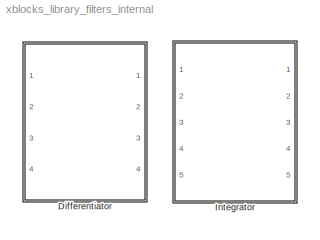
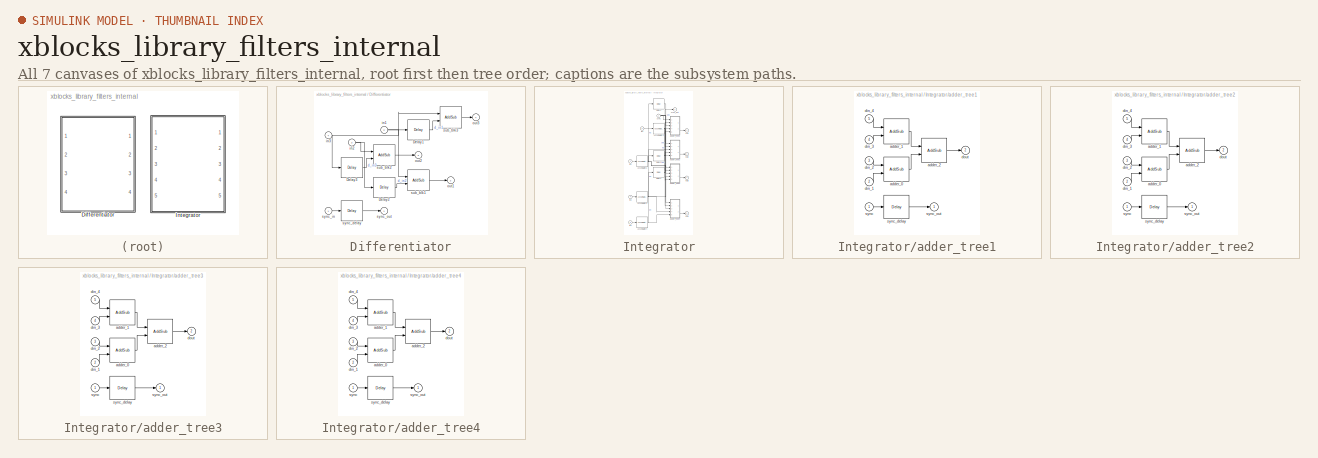
[diagram: thumbnail index - all 7 canvases of the model, root first then tree order]
MODEL xblocks_library_filters_internal
KIND library
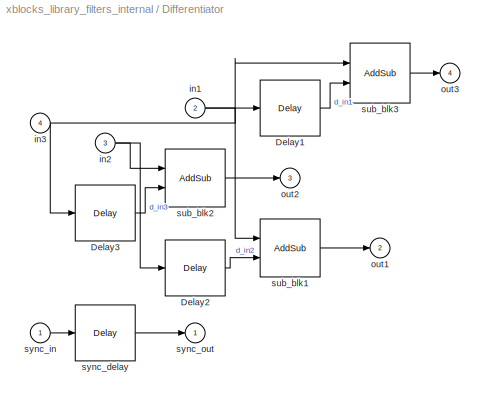
BLOCK [SubSystem] Differentiator
  AttributesFormatString = Differentiation length = 8\nBitwidth = 10 bin_pt=8
  FunctionWithSeparateData = off
  MaskCallbackString = ||||
  MaskDescription = Parallely Differentiate for a given length.
  MaskEnableString = on,on,on,on,on
  MaskHideContents = off
  MaskIconFrame = on
  MaskIconOpaque = on
  MaskIconRotate = none
  MaskIconUnits = autoscale
  MaskInitialization = config.source=str2func('parallel_differentiator_init_xblock');\nconfig.depend=get_dependlist('parallel_differentiator');\nconfig.toplevel=gcb;\nset_param(gcb,'LinkStatus','inactive');\nxBlock(config, {config.toplevel,...\n    'n_inputs', n_inputs, ...\n    'n_bits', n_bits, ...\n    'bin_pt', bin_pt, ...\n    'latency', latency, ...\n    'diff_length', diff_length});
  MaskPortRotate = default
  MaskPromptString = number of inputs|bitwidth of input/output|binary point|Add/Sub Latency|Differentiation Length
  MaskStyleString = edit,edit,edit,edit,edit
  MaskToolTipString = on,on,on,on,on
  MaskTunableValueString = on,on,on,on,on
  MaskType = Parallel Differentiator (xBlock)
  MaskValueString = 3|10|8|1|8
  MaskVariables = n_inputs=@1;n_bits=@2;bin_pt=@3;latency=@4;diff_length=@5;
  MaskVisibilityString = on,on,on,on,on
  MinAlgLoopOccurrences = off
  Opaque = off
  Ports = [4, 4]
  PropExecContextOutsideSubsystem = off
  RTWSystemCode = Auto
  RequestExecContextInheritance = off
  SID = 398
  UserData = DataTag0
  UserDataPersistent = on
BLOCK [Reference] Differentiator/Delay1  REF=xbsIndex_r4/Delay
  Ports = [1, 1]
  SID = 1208
  SourceBlock = xbsIndex_r4/Delay
  SourceType = Xilinx Delay Block
  block_type = delay
  block_version = 11.4
  dbl_ovrd = off
  en = off
  has_advanced_control = 0
  infoedit = Hardware notes: A delay line is a chain, each link of which is an SRL16 followed by a flip-flop.
  latency = 2
  reg_retiming = off
  sg_icon_stat = 60,56,1,1,white,blue,0,85ce9542,right,
  sg_mask_display = fprintf('','COMMENT: begin icon graphics');\npatch([0 1 1 0 ],[0 0 1 1 ],[0.77 0.82 0.91]);\npatch([0.25 0.1 0.316667 0.1 0.25 0.5 0.566667 0.633333 0.9 0.683333 0.483333 0.333333 0.533333 0.333333 0.483333 0.683333 0.9 0.633333 0.566667 0.5 0.25 ],[0.107143 0.267857 0.5 0.732143 0.892857 0.892857 0.821429 0.892857 0.892857 0.660714 0.875 0.714286 0.5 0.285714 0.125 0.339286 0.107143 0.107143 0.17...<+249ch>  <repeated x11 — deduplicated; at blocks: Delay1, Delay2, Delay3, sync_delay, Delay4>
  sggui_pos = -1,-1,-1,-1
  xl_area = [0,0,0,0,0,0,0]
  xl_use_area = off
BLOCK [Reference] Differentiator/Delay2  REF=xbsIndex_r4/Delay
  Ports = [1, 1]
  SID = 1206
  SourceBlock = xbsIndex_r4/Delay
  SourceType = Xilinx Delay Block
  block_type = delay
  block_version = 11.4
  dbl_ovrd = off
  en = off
  has_advanced_control = 0
  infoedit = Hardware notes: A delay line is a chain, each link of which is an SRL16 followed by a flip-flop.
  latency = 3
  reg_retiming = off
  sg_icon_stat = 60,56,1,1,white,blue,0,83e6bb61,right,
  sggui_pos = -1,-1,-1,-1
  xl_area = [0,0,0,0,0,0,0]
  xl_use_area = off
BLOCK [Reference] Differentiator/Delay3  REF=xbsIndex_r4/Delay
  Ports = [1, 1]
  SID = 1207
  SourceBlock = xbsIndex_r4/Delay
  SourceType = Xilinx Delay Block
  block_type = delay
  block_version = 11.4
  dbl_ovrd = off
  en = off
  has_advanced_control = 0
  infoedit = Hardware notes: A delay line is a chain, each link of which is an SRL16 followed by a flip-flop.
  latency = 3
  reg_retiming = off
  sg_icon_stat = 60,56,1,1,white,blue,0,83e6bb61,right,
  sggui_pos = -1,-1,-1,-1
  xl_area = [0,0,0,0,0,0,0]
  xl_use_area = off
BLOCK [Inport] Differentiator/in1
  IconDisplay = Port number
  Port = 2
  SID = 400
BLOCK [Inport] Differentiator/in2
  IconDisplay = Port number
  Port = 3
  SID = 401
BLOCK [Inport] Differentiator/in3
  IconDisplay = Port number
  Port = 4
  SID = 402
BLOCK [Outport] Differentiator/out1
  IconDisplay = Port number
  Port = 2
  SID = 411
BLOCK [Outport] Differentiator/out2
  IconDisplay = Port number
  Port = 3
  SID = 412
BLOCK [Outport] Differentiator/out3
  IconDisplay = Port number
  Port = 4
  SID = 413
BLOCK [Reference] Differentiator/sub_blk1  REF=xbsIndex_r4/AddSub
  Ports = [2, 1]
  SID = 1209
  SourceBlock = xbsIndex_r4/AddSub
  SourceType = Xilinx Adder/Subtracter Block
  arith_type = Signed  (2's comp)
  bin_pt = 8
  block_type = addsub
  block_version = 11.4
  dbl_ovrd = off
  en = off
  has_advanced_control = 0
  hw_selection = Fabric
  latency = 1
  mode = Subtraction
  n_bits = 10
  overflow = Wrap
  pipelined = off
  precision = User Defined
  quantization = Truncate
  sg_icon_stat = 60,58,2,1,white,blue,0,f9b6405b,right,
  sg_mask_display = fprintf('','COMMENT: begin icon graphics');\npatch([0 1 1 0 ],[0 0 1 1 ],[0.77 0.82 0.91]);\npatch([0.25 0.0833333 0.316667 0.0833333 0.25 0.5 0.566667 0.633333 0.9 0.683333 0.483333 0.333333 0.566667 0.333333 0.483333 0.683333 0.9 0.633333 0.566667 0.5 0.25 ],[0.103448 0.275862 0.517241 0.758621 0.931034 0.931034 0.862069 0.931034 0.931034 0.706897 0.913793 0.758621 0.517241 0.275862 0.12069 0.32...<+455ch>  <repeated x10 — deduplicated; at blocks: sub_blk1, sub_blk2, adder_0, adder_2>
  sggui_pos = -1,-1,-1,-1
  use_behavioral_HDL = on
  use_carryin = off
  use_carryout = off
  xl_area = [0,0,0,0,0,0,0]
  xl_use_area = off
BLOCK [Reference] Differentiator/sub_blk2  REF=xbsIndex_r4/AddSub
  Ports = [2, 1]
  SID = 1210
  SourceBlock = xbsIndex_r4/AddSub
  SourceType = Xilinx Adder/Subtracter Block
  arith_type = Signed  (2's comp)
  bin_pt = 8
  block_type = addsub
  block_version = 11.4
  dbl_ovrd = off
  en = off
  has_advanced_control = 0
  hw_selection = Fabric
  latency = 1
  mode = Subtraction
  n_bits = 10
  overflow = Wrap
  pipelined = off
  precision = User Defined
  quantization = Truncate
  sg_icon_stat = 60,58,2,1,white,blue,0,f9b6405b,right,
  sggui_pos = -1,-1,-1,-1
  use_behavioral_HDL = on
  use_carryin = off
  use_carryout = off
  xl_area = [0,0,0,0,0,0,0]
  xl_use_area = off
BLOCK [Reference] Differentiator/sub_blk3  REF=xbsIndex_r4/AddSub
  Ports = [2, 1]
  SID = 1211
  SourceBlock = xbsIndex_r4/AddSub
  SourceType = Xilinx Adder/Subtracter Block
  arith_type = Signed  (2's comp)
  bin_pt = 8
  block_type = addsub
  block_version = 11.4
  dbl_ovrd = off
  en = off
  has_advanced_control = 0
  hw_selection = Fabric
  latency = 1
  mode = Subtraction
  n_bits = 10
  overflow = Wrap
  pipelined = off
  precision = User Defined
  quantization = Truncate
  sg_icon_stat = 60,60,2,1,white,blue,0,f9b6405b,right,
  sg_mask_display = fprintf('','COMMENT: begin icon graphics');\npatch([0 1 1 0 ],[0 0 1 1 ],[0.77 0.82 0.91]);\npatch([0.233333 0.0666667 0.3 0.0666667 0.233333 0.5 0.566667 0.633333 0.916667 0.7 0.483333 0.333333 0.583333 0.333333 0.483333 0.7 0.916667 0.633333 0.566667 0.5 0.233333 ],[0.1 0.266667 0.5 0.733333 0.9 0.9 0.833333 0.9 0.9 0.683333 0.9 0.75 0.5 0.25 0.1 0.316667 0.1 0.1 0.166667 0.1 0.1 ],[0.98 0.96 0....<+390ch>  <repeated x5 — deduplicated; at blocks: sub_blk3, adder_1>
  sggui_pos = -1,-1,-1,-1
  use_behavioral_HDL = on
  use_carryin = off
  use_carryout = off
  xl_area = [0,0,0,0,0,0,0]
  xl_use_area = off
BLOCK [Reference] Differentiator/sync_delay  REF=xbsIndex_r4/Delay
  Ports = [1, 1]
  SID = 1212
  SourceBlock = xbsIndex_r4/Delay
  SourceType = Xilinx Delay Block
  block_type = delay
  block_version = 11.4
  dbl_ovrd = off
  en = off
  has_advanced_control = 0
  infoedit = Hardware notes: A delay line is a chain, each link of which is an SRL16 followed by a flip-flop.
  latency = 1
  reg_retiming = off
  sg_icon_stat = 60,56,1,1,white,blue,0,07b98262,right,
  sggui_pos = -1,-1,-1,-1
  xl_area = [0,0,0,0,0,0,0]
  xl_use_area = off
BLOCK [Inport] Differentiator/sync_in
  IconDisplay = Port number
  SID = 399
BLOCK [Outport] Differentiator/sync_out
  IconDisplay = Port number
  SID = 410
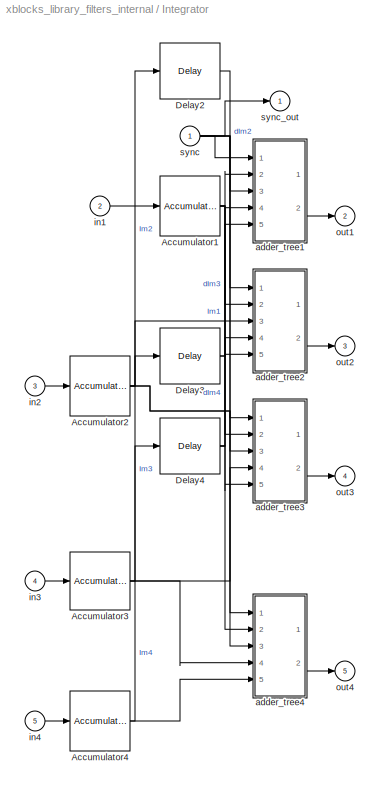
BLOCK [SubSystem] Integrator
  AttributesFormatString = Add Latency = 1\nBitwidth = 8 bin_pt = 0\nSaturate
  FunctionWithSeparateData = off
  MaskCallbackString = ||||
  MaskDescription = Parallely Integrate.
  MaskEnableString = on,on,on,on,on
  MaskHideContents = off
  MaskIconFrame = on
  MaskIconOpaque = on
  MaskIconRotate = none
  MaskIconUnits = autoscale
  MaskInitialization = config.source=str2func('parallel_integrator_init_xblock');\nconfig.depend=get_dependlist('parallel_integrator');\nconfig.toplevel=gcb;\nset_param(gcb,'LinkStatus','inactive');\nxBlock(config, {config.toplevel,...\n    'n_inputs', n_inputs, ...\n    'n_bits', n_bits, ...\n    'bin_pt', bin_pt, ...\n    'add_latency', add_latency, ...\n    'overflow', overflow});
  MaskPortRotate = default
  MaskPromptString = number of inputs|bitwidth of output|binary point|Overflow|Add Latency
  MaskStyleString = edit,edit,edit,popup(Wrap|Saturate|Flag as error),edit
  MaskToolTipString = on,on,on,on,on
  MaskTunableValueString = on,on,on,on,on
  MaskType = Parallel Integrator (xBlock)
  MaskValueString = 4|8|0|Saturate|1
  MaskVariables = n_inputs=@1;n_bits=@2;bin_pt=@3;overflow=&4;add_latency=@5;
  MaskVisibilityString = on,on,on,on,on
  MinAlgLoopOccurrences = off
  Opaque = off
  Ports = [5, 5]
  PropExecContextOutsideSubsystem = off
  RTWSystemCode = Auto
  RequestExecContextInheritance = off
  SID = 422
  UserData = DataTag1
  UserDataPersistent = on
BLOCK [Reference] Integrator/Accumulator1  REF=xbsIndex_r4/Accumulator
  Ports = [1, 1]
  SID = 1136
  SourceBlock = xbsIndex_r4/Accumulator
  SourceType = Xilinx Accumulator Block
  block_type = accum
  block_version = 11.4
  dbl_ovrd = off
  en = off
  has_advanced_control = 0
  hasbypass = off
  implementation = Fabric
  infoedit = Adder or subtracter-based accumulator.   Output type and binary point position match the input.<br><br>Hardware notes: When \"Reinitialize with input 'b' on reset\" is selected, the accumulator is forced to run at the system rate even if the input 'b' is running at a slower rate.  <repeated x4 — deduplicated; at blocks: Accumulator1, Accumulator2, Accumulator3, Accumulator4>
  n_bits = 8
  operation = Add
  overflow = Saturate
  rst = off
  scale = 1
  sg_icon_stat = 60,60,1,1,white,blue,0,75f017e6,right,
  sg_mask_display = fprintf('','COMMENT: begin icon graphics');\npatch([0 1 1 0 ],[0 0 1 1 ],[0.77 0.82 0.91]);\npatch([0.233333 0.0666667 0.3 0.0666667 0.233333 0.5 0.566667 0.633333 0.916667 0.7 0.483333 0.333333 0.583333 0.333333 0.483333 0.7 0.916667 0.633333 0.566667 0.5 0.233333 ],[0.1 0.266667 0.5 0.733333 0.9 0.9 0.833333 0.9 0.9 0.683333 0.9 0.75 0.5 0.25 0.1 0.316667 0.1 0.1 0.166667 0.1 0.1 ],[0.98 0.96 0....<+251ch>  <repeated x3 — deduplicated; at blocks: Accumulator1, Accumulator2, Accumulator4>
  sggui_pos = -1,-1,-1,-1
  use_behavioral_HDL = on
  xl_area = [0,0,0,0,0,0,0]
  xl_use_area = off
BLOCK [Reference] Integrator/Accumulator2  REF=xbsIndex_r4/Accumulator
  Ports = [1, 1]
  SID = 1137
  SourceBlock = xbsIndex_r4/Accumulator
  SourceType = Xilinx Accumulator Block
  block_type = accum
  block_version = 11.4
  dbl_ovrd = off
  en = off
  has_advanced_control = 0
  hasbypass = off
  implementation = Fabric
  n_bits = 8
  operation = Add
  overflow = Saturate
  rst = off
  scale = 1
  sg_icon_stat = 60,60,1,1,white,blue,0,75f017e6,right,
  sggui_pos = -1,-1,-1,-1
  use_behavioral_HDL = on
  xl_area = [0,0,0,0,0,0,0]
  xl_use_area = off
BLOCK [Reference] Integrator/Accumulator3  REF=xbsIndex_r4/Accumulator
  Ports = [1, 1]
  SID = 1138
  SourceBlock = xbsIndex_r4/Accumulator
  SourceType = Xilinx Accumulator Block
  block_type = accum
  block_version = 11.4
  dbl_ovrd = off
  en = off
  has_advanced_control = 0
  hasbypass = off
  implementation = Fabric
  n_bits = 8
  operation = Add
  overflow = Saturate
  rst = off
  scale = 1
  sg_icon_stat = 60,58,1,1,white,blue,0,75f017e6,right,
  sg_mask_display = fprintf('','COMMENT: begin icon graphics');\npatch([0 1 1 0 ],[0 0 1 1 ],[0.77 0.82 0.91]);\npatch([0.25 0.0833333 0.316667 0.0833333 0.25 0.5 0.566667 0.633333 0.9 0.683333 0.483333 0.333333 0.566667 0.333333 0.483333 0.683333 0.9 0.633333 0.566667 0.5 0.25 ],[0.103448 0.275862 0.517241 0.758621 0.931034 0.931034 0.862069 0.931034 0.931034 0.706897 0.913793 0.758621 0.517241 0.275862 0.12069 0.32...<+316ch>
  sggui_pos = -1,-1,-1,-1
  use_behavioral_HDL = on
  xl_area = [0,0,0,0,0,0,0]
  xl_use_area = off
BLOCK [Reference] Integrator/Accumulator4  REF=xbsIndex_r4/Accumulator
  Ports = [1, 1]
  SID = 1139
  SourceBlock = xbsIndex_r4/Accumulator
  SourceType = Xilinx Accumulator Block
  block_type = accum
  block_version = 11.4
  dbl_ovrd = off
  en = off
  has_advanced_control = 0
  hasbypass = off
  implementation = Fabric
  n_bits = 8
  operation = Add
  overflow = Saturate
  rst = off
  scale = 1
  sg_icon_stat = 60,60,1,1,white,blue,0,75f017e6,right,
  sggui_pos = -1,-1,-1,-1
  use_behavioral_HDL = on
  xl_area = [0,0,0,0,0,0,0]
  xl_use_area = off
BLOCK [Reference] Integrator/Delay2  REF=xbsIndex_r4/Delay
  Ports = [1, 1]
  SID = 1140
  SourceBlock = xbsIndex_r4/Delay
  SourceType = Xilinx Delay Block
  block_type = delay
  block_version = 11.4
  dbl_ovrd = off
  en = off
  has_advanced_control = 0
  infoedit = Hardware notes: A delay line is a chain, each link of which is an SRL16 followed by a flip-flop.
  latency = 1
  reg_retiming = off
  sg_icon_stat = 60,56,1,1,white,blue,0,07b98262,right,
  sggui_pos = -1,-1,-1,-1
  xl_area = [0,0,0,0,0,0,0]
  xl_use_area = off
BLOCK [Reference] Integrator/Delay3  REF=xbsIndex_r4/Delay
  Ports = [1, 1]
  SID = 1141
  SourceBlock = xbsIndex_r4/Delay
  SourceType = Xilinx Delay Block
  block_type = delay
  block_version = 11.4
  dbl_ovrd = off
  en = off
  has_advanced_control = 0
  infoedit = Hardware notes: A delay line is a chain, each link of which is an SRL16 followed by a flip-flop.
  latency = 1
  reg_retiming = off
  sg_icon_stat = 60,56,1,1,white,blue,0,07b98262,right,
  sggui_pos = -1,-1,-1,-1
  xl_area = [0,0,0,0,0,0,0]
  xl_use_area = off
BLOCK [Reference] Integrator/Delay4  REF=xbsIndex_r4/Delay
  Ports = [1, 1]
  SID = 1142
  SourceBlock = xbsIndex_r4/Delay
  SourceType = Xilinx Delay Block
  block_type = delay
  block_version = 11.4
  dbl_ovrd = off
  en = off
  has_advanced_control = 0
  infoedit = Hardware notes: A delay line is a chain, each link of which is an SRL16 followed by a flip-flop.
  latency = 1
  reg_retiming = off
  sg_icon_stat = 60,56,1,1,white,blue,0,07b98262,right,
  sggui_pos = -1,-1,-1,-1
  xl_area = [0,0,0,0,0,0,0]
  xl_use_area = off
BLOCK [SubSystem] Integrator/adder_tree1
  FunctionWithSeparateData = off
  MaskHideContents = off
  MinAlgLoopOccurrences = off
  Opaque = off
  Ports = [5, 2]
  PropExecContextOutsideSubsystem = off
  RTWSystemCode = Auto
  RequestExecContextInheritance = off
  SID = 1143
BLOCK [Reference] Integrator/adder_tree1/adder_0  REF=xbsIndex_r4/AddSub
  Ports = [2, 1]
  SID = 1153
  SourceBlock = xbsIndex_r4/AddSub
  SourceType = Xilinx Adder/Subtracter Block
  arith_type = Unsigned
  bin_pt = 14
  block_type = addsub
  block_version = 11.4
  dbl_ovrd = off
  en = off
  has_advanced_control = 0
  hw_selection = Fabric
  latency = 1
  mode = Addition
  n_bits = 16
  overflow = Wrap
  pipelined = off
  precision = Full
  quantization = Round  (unbiased: +/- Inf)
  sg_icon_stat = 60,58,2,1,white,blue,0,8ff03b5e,right,
  sggui_pos = -1,-1,-1,-1
  use_behavioral_HDL = on
  use_carryin = off
  use_carryout = off
  xl_area = [0,0,0,0,0,0,0]
  xl_use_area = off
BLOCK [Reference] Integrator/adder_tree1/adder_1  REF=xbsIndex_r4/AddSub
  Ports = [2, 1]
  SID = 1154
  SourceBlock = xbsIndex_r4/AddSub
  SourceType = Xilinx Adder/Subtracter Block
  arith_type = Unsigned
  bin_pt = 14
  block_type = addsub
  block_version = 11.4
  dbl_ovrd = off
  en = off
  has_advanced_control = 0
  hw_selection = Fabric
  latency = 1
  mode = Addition
  n_bits = 16
  overflow = Wrap
  pipelined = off
  precision = Full
  quantization = Round  (unbiased: +/- Inf)
  sg_icon_stat = 60,60,2,1,white,blue,0,8ff03b5e,right,
  sggui_pos = -1,-1,-1,-1
  use_behavioral_HDL = on
  use_carryin = off
  use_carryout = off
  xl_area = [0,0,0,0,0,0,0]
  xl_use_area = off
BLOCK [Reference] Integrator/adder_tree1/adder_2  REF=xbsIndex_r4/AddSub
  Ports = [2, 1]
  SID = 1155
  SourceBlock = xbsIndex_r4/AddSub
  SourceType = Xilinx Adder/Subtracter Block
  arith_type = Unsigned
  bin_pt = 14
  block_type = addsub
  block_version = 11.4
  dbl_ovrd = off
  en = off
  has_advanced_control = 0
  hw_selection = Fabric
  latency = 1
  mode = Addition
  n_bits = 16
  overflow = Wrap
  pipelined = off
  precision = Full
  quantization = Round  (unbiased: +/- Inf)
  sg_icon_stat = 60,58,2,1,white,blue,0,8ff03b5e,right,
  sggui_pos = -1,-1,-1,-1
  use_behavioral_HDL = on
  use_carryin = off
  use_carryout = off
  xl_area = [0,0,0,0,0,0,0]
  xl_use_area = off
BLOCK [Inport] Integrator/adder_tree1/din_1
  IconDisplay = Port number
  Port = 2
  SID = 1145
BLOCK [Inport] Integrator/adder_tree1/din_2
  IconDisplay = Port number
  Port = 3
  SID = 1146
BLOCK [Inport] Integrator/adder_tree1/din_3
  IconDisplay = Port number
  Port = 4
  SID = 1147
BLOCK [Inport] Integrator/adder_tree1/din_4
  IconDisplay = Port number
  Port = 5
  SID = 1148
BLOCK [Outport] Integrator/adder_tree1/dout
  IconDisplay = Port number
  Port = 2
  SID = 1150
BLOCK [Inport] Integrator/adder_tree1/sync
  IconDisplay = Port number
  SID = 1144
BLOCK [Reference] Integrator/adder_tree1/sync_delay  REF=xbsIndex_r4/Delay
  Ports = [1, 1]
  SID = 1151
  SourceBlock = xbsIndex_r4/Delay
  SourceType = Xilinx Delay Block
  block_type = delay
  block_version = 11.4
  dbl_ovrd = off
  en = off
  has_advanced_control = 0
  infoedit = Hardware notes: A delay line is a chain, each link of which is an SRL16 followed by a flip-flop.
  latency = 2
  reg_retiming = off
  sg_icon_stat = 60,56,1,1,white,blue,0,85ce9542,right,
  sggui_pos = -1,-1,-1,-1
  xl_area = [0,0,0,0,0,0,0]
  xl_use_area = off
BLOCK [Outport] Integrator/adder_tree1/sync_out
  IconDisplay = Port number
  SID = 1149
BLOCK [SubSystem] Integrator/adder_tree2
  FunctionWithSeparateData = off
  MaskHideContents = off
  MinAlgLoopOccurrences = off
  Opaque = off
  Ports = [5, 2]
  PropExecContextOutsideSubsystem = off
  RTWSystemCode = Auto
  RequestExecContextInheritance = off
  SID = 1156
BLOCK [Reference] Integrator/adder_tree2/adder_0  REF=xbsIndex_r4/AddSub
  Ports = [2, 1]
  SID = 1166
  SourceBlock = xbsIndex_r4/AddSub
  SourceType = Xilinx Adder/Subtracter Block
  arith_type = Unsigned
  bin_pt = 14
  block_type = addsub
  block_version = 11.4
  dbl_ovrd = off
  en = off
  has_advanced_control = 0
  hw_selection = Fabric
  latency = 1
  mode = Addition
  n_bits = 16
  overflow = Wrap
  pipelined = off
  precision = Full
  quantization = Round  (unbiased: +/- Inf)
  sg_icon_stat = 60,58,2,1,white,blue,0,8ff03b5e,right,
  sggui_pos = -1,-1,-1,-1
  use_behavioral_HDL = on
  use_carryin = off
  use_carryout = off
  xl_area = [0,0,0,0,0,0,0]
  xl_use_area = off
BLOCK [Reference] Integrator/adder_tree2/adder_1  REF=xbsIndex_r4/AddSub
  Ports = [2, 1]
  SID = 1167
  SourceBlock = xbsIndex_r4/AddSub
  SourceType = Xilinx Adder/Subtracter Block
  arith_type = Unsigned
  bin_pt = 14
  block_type = addsub
  block_version = 11.4
  dbl_ovrd = off
  en = off
  has_advanced_control = 0
  hw_selection = Fabric
  latency = 1
  mode = Addition
  n_bits = 16
  overflow = Wrap
  pipelined = off
  precision = Full
  quantization = Round  (unbiased: +/- Inf)
  sg_icon_stat = 60,60,2,1,white,blue,0,8ff03b5e,right,
  sggui_pos = -1,-1,-1,-1
  use_behavioral_HDL = on
  use_carryin = off
  use_carryout = off
  xl_area = [0,0,0,0,0,0,0]
  xl_use_area = off
BLOCK [Reference] Integrator/adder_tree2/adder_2  REF=xbsIndex_r4/AddSub
  Ports = [2, 1]
  SID = 1168
  SourceBlock = xbsIndex_r4/AddSub
  SourceType = Xilinx Adder/Subtracter Block
  arith_type = Unsigned
  bin_pt = 14
  block_type = addsub
  block_version = 11.4
  dbl_ovrd = off
  en = off
  has_advanced_control = 0
  hw_selection = Fabric
  latency = 1
  mode = Addition
  n_bits = 16
  overflow = Wrap
  pipelined = off
  precision = Full
  quantization = Round  (unbiased: +/- Inf)
  sg_icon_stat = 60,58,2,1,white,blue,0,8ff03b5e,right,
  sggui_pos = -1,-1,-1,-1
  use_behavioral_HDL = on
  use_carryin = off
  use_carryout = off
  xl_area = [0,0,0,0,0,0,0]
  xl_use_area = off
BLOCK [Inport] Integrator/adder_tree2/din_1
  IconDisplay = Port number
  Port = 2
  SID = 1158
BLOCK [Inport] Integrator/adder_tree2/din_2
  IconDisplay = Port number
  Port = 3
  SID = 1159
BLOCK [Inport] Integrator/adder_tree2/din_3
  IconDisplay = Port number
  Port = 4
  SID = 1160
BLOCK [Inport] Integrator/adder_tree2/din_4
  IconDisplay = Port number
  Port = 5
  SID = 1161
BLOCK [Outport] Integrator/adder_tree2/dout
  IconDisplay = Port number
  Port = 2
  SID = 1163
BLOCK [Inport] Integrator/adder_tree2/sync
  IconDisplay = Port number
  SID = 1157
BLOCK [Reference] Integrator/adder_tree2/sync_delay  REF=xbsIndex_r4/Delay
  Ports = [1, 1]
  SID = 1164
  SourceBlock = xbsIndex_r4/Delay
  SourceType = Xilinx Delay Block
  block_type = delay
  block_version = 11.4
  dbl_ovrd = off
  en = off
  has_advanced_control = 0
  infoedit = Hardware notes: A delay line is a chain, each link of which is an SRL16 followed by a flip-flop.
  latency = 2
  reg_retiming = off
  sg_icon_stat = 60,56,1,1,white,blue,0,85ce9542,right,
  sggui_pos = -1,-1,-1,-1
  xl_area = [0,0,0,0,0,0,0]
  xl_use_area = off
BLOCK [Outport] Integrator/adder_tree2/sync_out
  IconDisplay = Port number
  SID = 1162
BLOCK [SubSystem] Integrator/adder_tree3
  FunctionWithSeparateData = off
  MaskHideContents = off
  MinAlgLoopOccurrences = off
  Opaque = off
  Ports = [5, 2]
  PropExecContextOutsideSubsystem = off
  RTWSystemCode = Auto
  RequestExecContextInheritance = off
  SID = 1169
BLOCK [Reference] Integrator/adder_tree3/adder_0  REF=xbsIndex_r4/AddSub
  Ports = [2, 1]
  SID = 1179
  SourceBlock = xbsIndex_r4/AddSub
  SourceType = Xilinx Adder/Subtracter Block
  arith_type = Unsigned
  bin_pt = 14
  block_type = addsub
  block_version = 11.4
  dbl_ovrd = off
  en = off
  has_advanced_control = 0
  hw_selection = Fabric
  latency = 1
  mode = Addition
  n_bits = 16
  overflow = Wrap
  pipelined = off
  precision = Full
  quantization = Round  (unbiased: +/- Inf)
  sg_icon_stat = 60,58,2,1,white,blue,0,8ff03b5e,right,
  sggui_pos = -1,-1,-1,-1
  use_behavioral_HDL = on
  use_carryin = off
  use_carryout = off
  xl_area = [0,0,0,0,0,0,0]
  xl_use_area = off
BLOCK [Reference] Integrator/adder_tree3/adder_1  REF=xbsIndex_r4/AddSub
  Ports = [2, 1]
  SID = 1180
  SourceBlock = xbsIndex_r4/AddSub
  SourceType = Xilinx Adder/Subtracter Block
  arith_type = Unsigned
  bin_pt = 14
  block_type = addsub
  block_version = 11.4
  dbl_ovrd = off
  en = off
  has_advanced_control = 0
  hw_selection = Fabric
  latency = 1
  mode = Addition
  n_bits = 16
  overflow = Wrap
  pipelined = off
  precision = Full
  quantization = Round  (unbiased: +/- Inf)
  sg_icon_stat = 60,60,2,1,white,blue,0,8ff03b5e,right,
  sggui_pos = -1,-1,-1,-1
  use_behavioral_HDL = on
  use_carryin = off
  use_carryout = off
  xl_area = [0,0,0,0,0,0,0]
  xl_use_area = off
BLOCK [Reference] Integrator/adder_tree3/adder_2  REF=xbsIndex_r4/AddSub
  Ports = [2, 1]
  SID = 1181
  SourceBlock = xbsIndex_r4/AddSub
  SourceType = Xilinx Adder/Subtracter Block
  arith_type = Unsigned
  bin_pt = 14
  block_type = addsub
  block_version = 11.4
  dbl_ovrd = off
  en = off
  has_advanced_control = 0
  hw_selection = Fabric
  latency = 1
  mode = Addition
  n_bits = 16
  overflow = Wrap
  pipelined = off
  precision = Full
  quantization = Round  (unbiased: +/- Inf)
  sg_icon_stat = 60,58,2,1,white,blue,0,8ff03b5e,right,
  sggui_pos = -1,-1,-1,-1
  use_behavioral_HDL = on
  use_carryin = off
  use_carryout = off
  xl_area = [0,0,0,0,0,0,0]
  xl_use_area = off
BLOCK [Inport] Integrator/adder_tree3/din_1
  IconDisplay = Port number
  Port = 2
  SID = 1171
BLOCK [Inport] Integrator/adder_tree3/din_2
  IconDisplay = Port number
  Port = 3
  SID = 1172
BLOCK [Inport] Integrator/adder_tree3/din_3
  IconDisplay = Port number
  Port = 4
  SID = 1173
BLOCK [Inport] Integrator/adder_tree3/din_4
  IconDisplay = Port number
  Port = 5
  SID = 1174
BLOCK [Outport] Integrator/adder_tree3/dout
  IconDisplay = Port number
  Port = 2
  SID = 1176
BLOCK [Inport] Integrator/adder_tree3/sync
  IconDisplay = Port number
  SID = 1170
BLOCK [Reference] Integrator/adder_tree3/sync_delay  REF=xbsIndex_r4/Delay
  Ports = [1, 1]
  SID = 1177
  SourceBlock = xbsIndex_r4/Delay
  SourceType = Xilinx Delay Block
  block_type = delay
  block_version = 11.4
  dbl_ovrd = off
  en = off
  has_advanced_control = 0
  infoedit = Hardware notes: A delay line is a chain, each link of which is an SRL16 followed by a flip-flop.
  latency = 2
  reg_retiming = off
  sg_icon_stat = 60,56,1,1,white,blue,0,85ce9542,right,
  sggui_pos = -1,-1,-1,-1
  xl_area = [0,0,0,0,0,0,0]
  xl_use_area = off
BLOCK [Outport] Integrator/adder_tree3/sync_out
  IconDisplay = Port number
  SID = 1175
BLOCK [SubSystem] Integrator/adder_tree4
  FunctionWithSeparateData = off
  MaskHideContents = off
  MinAlgLoopOccurrences = off
  Opaque = off
  Ports = [5, 2]
  PropExecContextOutsideSubsystem = off
  RTWSystemCode = Auto
  RequestExecContextInheritance = off
  SID = 1182
BLOCK [Reference] Integrator/adder_tree4/adder_0  REF=xbsIndex_r4/AddSub
  Ports = [2, 1]
  SID = 1192
  SourceBlock = xbsIndex_r4/AddSub
  SourceType = Xilinx Adder/Subtracter Block
  arith_type = Unsigned
  bin_pt = 14
  block_type = addsub
  block_version = 11.4
  dbl_ovrd = off
  en = off
  has_advanced_control = 0
  hw_selection = Fabric
  latency = 1
  mode = Addition
  n_bits = 16
  overflow = Wrap
  pipelined = off
  precision = Full
  quantization = Round  (unbiased: +/- Inf)
  sg_icon_stat = 60,58,2,1,white,blue,0,8ff03b5e,right,
  sggui_pos = -1,-1,-1,-1
  use_behavioral_HDL = on
  use_carryin = off
  use_carryout = off
  xl_area = [0,0,0,0,0,0,0]
  xl_use_area = off
BLOCK [Reference] Integrator/adder_tree4/adder_1  REF=xbsIndex_r4/AddSub
  Ports = [2, 1]
  SID = 1193
  SourceBlock = xbsIndex_r4/AddSub
  SourceType = Xilinx Adder/Subtracter Block
  arith_type = Unsigned
  bin_pt = 14
  block_type = addsub
  block_version = 11.4
  dbl_ovrd = off
  en = off
  has_advanced_control = 0
  hw_selection = Fabric
  latency = 1
  mode = Addition
  n_bits = 16
  overflow = Wrap
  pipelined = off
  precision = Full
  quantization = Round  (unbiased: +/- Inf)
  sg_icon_stat = 60,60,2,1,white,blue,0,8ff03b5e,right,
  sggui_pos = -1,-1,-1,-1
  use_behavioral_HDL = on
  use_carryin = off
  use_carryout = off
  xl_area = [0,0,0,0,0,0,0]
  xl_use_area = off
BLOCK [Reference] Integrator/adder_tree4/adder_2  REF=xbsIndex_r4/AddSub
  Ports = [2, 1]
  SID = 1194
  SourceBlock = xbsIndex_r4/AddSub
  SourceType = Xilinx Adder/Subtracter Block
  arith_type = Unsigned
  bin_pt = 14
  block_type = addsub
  block_version = 11.4
  dbl_ovrd = off
  en = off
  has_advanced_control = 0
  hw_selection = Fabric
  latency = 1
  mode = Addition
  n_bits = 16
  overflow = Wrap
  pipelined = off
  precision = Full
  quantization = Round  (unbiased: +/- Inf)
  sg_icon_stat = 60,58,2,1,white,blue,0,8ff03b5e,right,
  sggui_pos = -1,-1,-1,-1
  use_behavioral_HDL = on
  use_carryin = off
  use_carryout = off
  xl_area = [0,0,0,0,0,0,0]
  xl_use_area = off
BLOCK [Inport] Integrator/adder_tree4/din_1
  IconDisplay = Port number
  Port = 2
  SID = 1184
BLOCK [Inport] Integrator/adder_tree4/din_2
  IconDisplay = Port number
  Port = 3
  SID = 1185
BLOCK [Inport] Integrator/adder_tree4/din_3
  IconDisplay = Port number
  Port = 4
  SID = 1186
BLOCK [Inport] Integrator/adder_tree4/din_4
  IconDisplay = Port number
  Port = 5
  SID = 1187
BLOCK [Outport] Integrator/adder_tree4/dout
  IconDisplay = Port number
  Port = 2
  SID = 1189
BLOCK [Inport] Integrator/adder_tree4/sync
  IconDisplay = Port number
  SID = 1183
BLOCK [Reference] Integrator/adder_tree4/sync_delay  REF=xbsIndex_r4/Delay
  Ports = [1, 1]
  SID = 1190
  SourceBlock = xbsIndex_r4/Delay
  SourceType = Xilinx Delay Block
  block_type = delay
  block_version = 11.4
  dbl_ovrd = off
  en = off
  has_advanced_control = 0
  infoedit = Hardware notes: A delay line is a chain, each link of which is an SRL16 followed by a flip-flop.
  latency = 2
  reg_retiming = off
  sg_icon_stat = 60,56,1,1,white,blue,0,85ce9542,right,
  sggui_pos = -1,-1,-1,-1
  xl_area = [0,0,0,0,0,0,0]
  xl_use_area = off
BLOCK [Outport] Integrator/adder_tree4/sync_out
  IconDisplay = Port number
  SID = 1188
BLOCK [Inport] Integrator/in1
  IconDisplay = Port number
  Port = 2
  SID = 423
BLOCK [Inport] Integrator/in2
  IconDisplay = Port number
  Port = 3
  SID = 424
BLOCK [Inport] Integrator/in3
  IconDisplay = Port number
  Port = 4
  SID = 425
BLOCK [Inport] Integrator/in4
  IconDisplay = Port number
  Port = 5
  SID = 426
BLOCK [Outport] Integrator/out1
  IconDisplay = Port number
  Port = 2
  SID = 483
BLOCK [Outport] Integrator/out2
  IconDisplay = Port number
  Port = 3
  SID = 484
BLOCK [Outport] Integrator/out3
  IconDisplay = Port number
  Port = 4
  SID = 485
BLOCK [Outport] Integrator/out4
  IconDisplay = Port number
  Port = 5
  SID = 486
BLOCK [Inport] Integrator/sync
  IconDisplay = Port number
  SID = 427
BLOCK [Outport] Integrator/sync_out
  IconDisplay = Port number
  SID = 723
LINE Differentiator/Delay1:1 -> Differentiator/sub_blk3:2
LINE Differentiator/Delay2:1 -> Differentiator/sub_blk1:2
LINE Differentiator/Delay3:1 -> Differentiator/sub_blk2:2
NET Differentiator/in1:1 -> Differentiator/Delay1:1, Differentiator/sub_blk1:1
NET Differentiator/in2:1 -> Differentiator/Delay2:1, Differentiator/sub_blk2:1
NET Differentiator/in3:1 -> Differentiator/Delay3:1, Differentiator/sub_blk3:1
LINE Differentiator/sub_blk1:1 -> Differentiator/out1:1
LINE Differentiator/sub_blk2:1 -> Differentiator/out2:1
LINE Differentiator/sub_blk3:1 -> Differentiator/out3:1
LINE Differentiator/sync_delay:1 -> Differentiator/sync_out:1
LINE Differentiator/sync_in:1 -> Differentiator/sync_delay:1
NET Integrator/Accumulator1:1 -> Integrator/adder_tree1:2, Integrator/adder_tree2:2, Integrator/adder_tree3:2, Integrator/adder_tree4:2
NET Integrator/Accumulator2:1 -> Integrator/Delay2:1, Integrator/adder_tree2:3, Integrator/adder_tree3:3, Integrator/adder_tree4:3
NET Integrator/Accumulator3:1 -> Integrator/Delay3:1, Integrator/adder_tree3:4, Integrator/adder_tree4:4
NET Integrator/Accumulator4:1 -> Integrator/Delay4:1, Integrator/adder_tree4:5
LINE Integrator/Delay2:1 -> Integrator/adder_tree1:3
NET Integrator/Delay3:1 -> Integrator/adder_tree1:4, Integrator/adder_tree2:4
NET Integrator/Delay4:1 -> Integrator/adder_tree1:5, Integrator/adder_tree2:5, Integrator/adder_tree3:5
LINE Integrator/adder_tree1/adder_0:1 -> Integrator/adder_tree1/adder_2:2
LINE Integrator/adder_tree1/adder_1:1 -> Integrator/adder_tree1/adder_2:1
LINE Integrator/adder_tree1/adder_2:1 -> Integrator/adder_tree1/dout:1
LINE Integrator/adder_tree1/din_1:1 -> Integrator/adder_tree1/adder_0:2
LINE Integrator/adder_tree1/din_2:1 -> Integrator/adder_tree1/adder_0:1
LINE Integrator/adder_tree1/din_3:1 -> Integrator/adder_tree1/adder_1:2
LINE Integrator/adder_tree1/din_4:1 -> Integrator/adder_tree1/adder_1:1
LINE Integrator/adder_tree1/sync:1 -> Integrator/adder_tree1/sync_delay:1
LINE Integrator/adder_tree1/sync_delay:1 -> Integrator/adder_tree1/sync_out:1
LINE Integrator/adder_tree1:2 -> Integrator/out1:1
LINE Integrator/adder_tree2/adder_0:1 -> Integrator/adder_tree2/adder_2:2
LINE Integrator/adder_tree2/adder_1:1 -> Integrator/adder_tree2/adder_2:1
LINE Integrator/adder_tree2/adder_2:1 -> Integrator/adder_tree2/dout:1
LINE Integrator/adder_tree2/din_1:1 -> Integrator/adder_tree2/adder_0:2
LINE Integrator/adder_tree2/din_2:1 -> Integrator/adder_tree2/adder_0:1
LINE Integrator/adder_tree2/din_3:1 -> Integrator/adder_tree2/adder_1:2
LINE Integrator/adder_tree2/din_4:1 -> Integrator/adder_tree2/adder_1:1
LINE Integrator/adder_tree2/sync:1 -> Integrator/adder_tree2/sync_delay:1
LINE Integrator/adder_tree2/sync_delay:1 -> Integrator/adder_tree2/sync_out:1
LINE Integrator/adder_tree2:2 -> Integrator/out2:1
LINE Integrator/adder_tree3/adder_0:1 -> Integrator/adder_tree3/adder_2:2
LINE Integrator/adder_tree3/adder_1:1 -> Integrator/adder_tree3/adder_2:1
LINE Integrator/adder_tree3/adder_2:1 -> Integrator/adder_tree3/dout:1
LINE Integrator/adder_tree3/din_1:1 -> Integrator/adder_tree3/adder_0:2
LINE Integrator/adder_tree3/din_2:1 -> Integrator/adder_tree3/adder_0:1
LINE Integrator/adder_tree3/din_3:1 -> Integrator/adder_tree3/adder_1:2
LINE Integrator/adder_tree3/din_4:1 -> Integrator/adder_tree3/adder_1:1
LINE Integrator/adder_tree3/sync:1 -> Integrator/adder_tree3/sync_delay:1
LINE Integrator/adder_tree3/sync_delay:1 -> Integrator/adder_tree3/sync_out:1
LINE Integrator/adder_tree3:2 -> Integrator/out3:1
LINE Integrator/adder_tree4/adder_0:1 -> Integrator/adder_tree4/adder_2:2
LINE Integrator/adder_tree4/adder_1:1 -> Integrator/adder_tree4/adder_2:1
LINE Integrator/adder_tree4/adder_2:1 -> Integrator/adder_tree4/dout:1
LINE Integrator/adder_tree4/din_1:1 -> Integrator/adder_tree4/adder_0:2
LINE Integrator/adder_tree4/din_2:1 -> Integrator/adder_tree4/adder_0:1
LINE Integrator/adder_tree4/din_3:1 -> Integrator/adder_tree4/adder_1:2
LINE Integrator/adder_tree4/din_4:1 -> Integrator/adder_tree4/adder_1:1
LINE Integrator/adder_tree4/sync:1 -> Integrator/adder_tree4/sync_delay:1
LINE Integrator/adder_tree4/sync_delay:1 -> Integrator/adder_tree4/sync_out:1
LINE Integrator/adder_tree4:2 -> Integrator/out4:1
LINE Integrator/in1:1 -> Integrator/Accumulator1:1
LINE Integrator/in2:1 -> Integrator/Accumulator2:1
LINE Integrator/in3:1 -> Integrator/Accumulator3:1
LINE Integrator/in4:1 -> Integrator/Accumulator4:1
NET Integrator/sync:1 -> Integrator/adder_tree1:1, Integrator/adder_tree2:1, Integrator/adder_tree3:1, Integrator/adder_tree4:1, Integrator/sync_out:1
note: NET lines group one-source signal fan-out (src -> all destinations, sorted); 1:1 wires keep LINE
